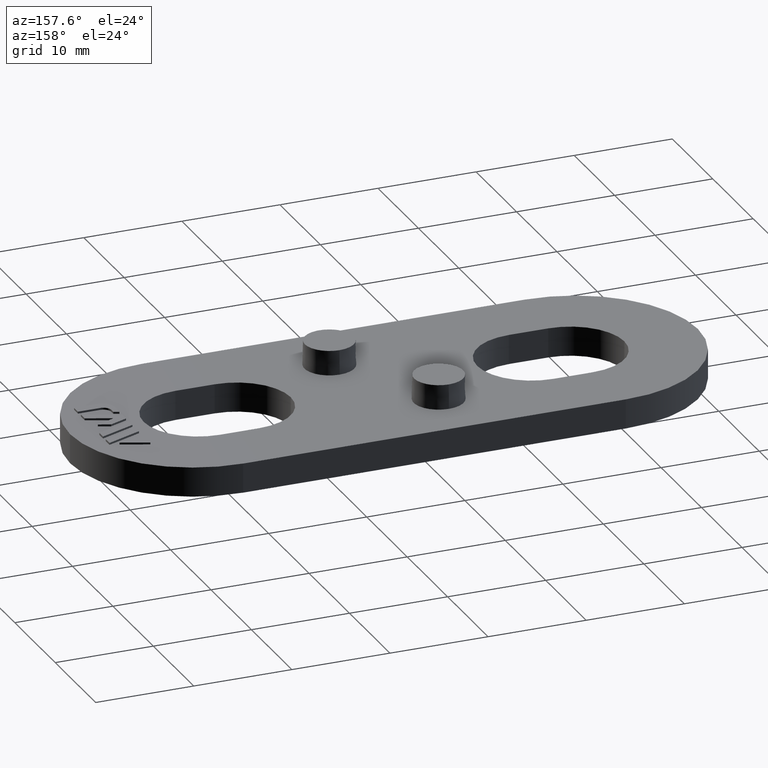
[diagram: clean part render]
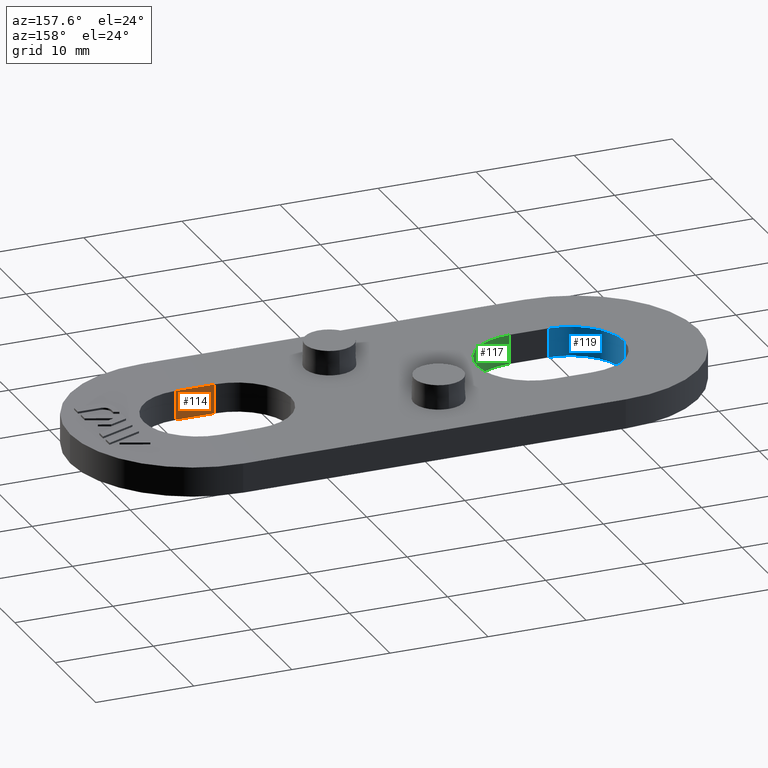
[diagram: same view with three faces highlighted in distinct colors, each labeled with its STEP entity id]
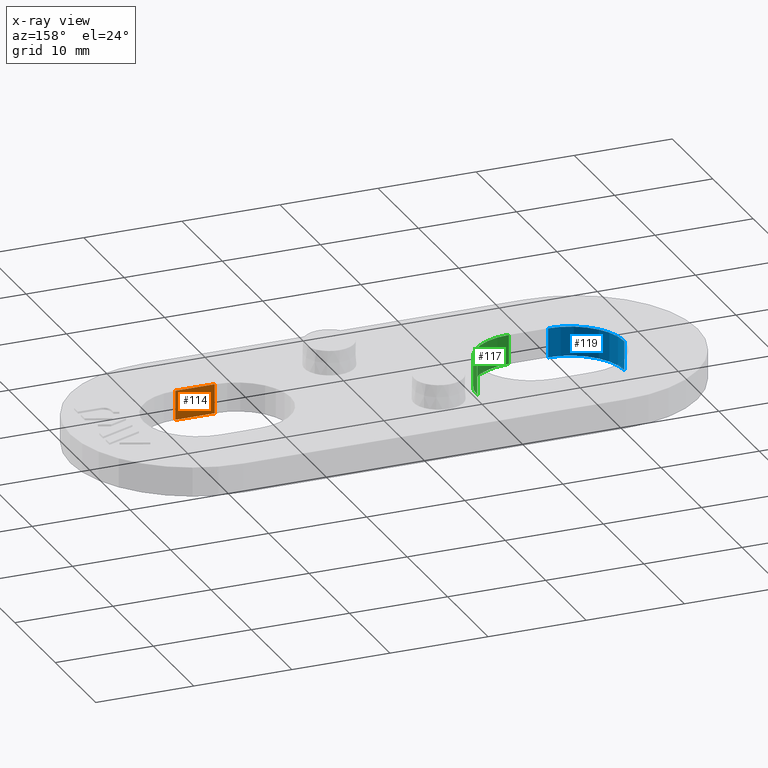
[diagram: x-ray of the same camera — body ghosted, the three highlighted faces saturated]
A machine part, auxiliary view with three faces highlighted in distinct colors.
The next image is the same camera in x-ray (body ghosted, the three faces saturated) — at least one of them is partly hidden behind the body in this view.
Their STEP definitions:

[orange] entity #114 — the highlighted planar face has unit normal (0, -1, 0).
#114 = ADVANCED_FACE( '', ( #240 ), #241, .F. );
#240 = FACE_OUTER_BOUND( '', #397, .T. );
#241 = PLANE( '', #398 );
#397 = EDGE_LOOP( '', ( #802, #803, #804, #805 ) );
#398 = AXIS2_PLACEMENT_3D( '', #806, #807, #808 );
#802 = ORIENTED_EDGE( '', *, *, #1040, .T. );
#803 = ORIENTED_EDGE( '', *, *, #1162, .T. );
#804 = ORIENTED_EDGE( '', *, *, #1111, .T. );
#805 = ORIENTED_EDGE( '', *, *, #1118, .F. );
#806 = CARTESIAN_POINT( '', ( 15.0000000000000, -5.49999999999999, -1.00000000042774E-005 ) );
#807 = DIRECTION( '', ( 5.78241158658936E-017, -1.00000000000000, 6.12303176911189E-017 ) );
#808 = DIRECTION( '', ( -1.00000000000000, -5.78241158658936E-017, 3.54058898467673E-033 ) );
#1040 = EDGE_CURVE( '', #1229, #1227, #1230, .T. );
#1111 = EDGE_CURVE( '', #1367, #1365, #1368, .T. );
#1118 = EDGE_CURVE( '', #1229, #1365, #1377, .T. );
#1162 = EDGE_CURVE( '', #1227, #1367, #1440, .T. );
#1227 = VERTEX_POINT( '', #1532 );
#1229 = VERTEX_POINT( '', #1534 );
#1230 = LINE( '', #1535, #1536 );
#1365 = VERTEX_POINT( '', #1717 );
#1367 = VERTEX_POINT( '', #1719 );
#1368 = LINE( '', #1720, #1721 );
#1377 = LINE( '', #1734, #1735 );
#1440 = LINE( '', #1838, #1839 );
#1532 = CARTESIAN_POINT( '', ( 15.0000000000000, -5.49999999999999, -2.60208521396521E-015 ) );
#1534 = CARTESIAN_POINT( '', ( 19.0000000000000, -5.49999999999999, -2.60208521396521E-015 ) );
#1535 = CARTESIAN_POINT( '', ( 15.0000000000000, -5.49999999999999, -2.60208521396521E-015 ) );
#1536 = VECTOR( '', #1966, 1000.00000000000 );
#1717 = CARTESIAN_POINT( '', ( 19.0000000000000, -5.49999999999999, 3.00000299994030 ) );
#1719 = CARTESIAN_POINT( '', ( 15.0000000000000, -5.49999999999999, 3.00000299994030 ) );
#1720 = CARTESIAN_POINT( '', ( 15.0000000000000, -5.49999999999999, 3.00000299994030 ) );
#1721 = VECTOR( '', #2085, 1000.00000000000 );
#1734 = CARTESIAN_POINT( '', ( 19.0000000000000, -5.49999999999999, -1.00000000042774E-005 ) );
#1735 = VECTOR( '', #2096, 1000.00000000000 );
#1838 = CARTESIAN_POINT( '', ( 15.0000000000000, -5.49999999999999, -1.00000000042774E-005 ) );
#1839 = VECTOR( '', #2146, 1000.00000000000 );
#1966 = DIRECTION( '', ( -1.00000000000000, -5.78241158658936E-017, 3.54058898467673E-033 ) );
#2085 = DIRECTION( '', ( 1.00000000000000, 5.78241158658936E-017, -3.54058898467673E-033 ) );
#2096 = DIRECTION( '', ( 0.000000000000000, 6.12303176911189E-017, 1.00000000000000 ) );
#2146 = DIRECTION( '', ( 0.000000000000000, 6.12303176911189E-017, 1.00000000000000 ) );

[blue] entity #119 — the highlighted cylindrical surface (partial cylindrical patch) has radius 5.5 mm, axis along (0, -0, -1).
#119 = ADVANCED_FACE( '', ( #250 ), #251, .F. );
#250 = FACE_OUTER_BOUND( '', #407, .T. );
#251 = CYLINDRICAL_SURFACE( '', #408, 5.50000000000000 );
#407 = EDGE_LOOP( '', ( #837, #838, #839, #840 ) );
#408 = AXIS2_PLACEMENT_3D( '', #841, #842, #843 );
#837 = ORIENTED_EDGE( '', *, *, #1045, .F. );
#838 = ORIENTED_EDGE( '', *, *, #1166, .T. );
#839 = ORIENTED_EDGE( '', *, *, #1101, .T. );
#840 = ORIENTED_EDGE( '', *, *, #1165, .F. );
#841 = CARTESIAN_POINT( '', ( -19.0000000000000, 0.000000000000000, -1.00000000042774E-005 ) );
#842 = DIRECTION( '', ( 0.000000000000000, -6.12303176911189E-017, -1.00000000000000 ) );
#843 = DIRECTION( '', ( -6.12303176911189E-017, 1.00000000000000, -6.12303176911189E-017 ) );
#1045 = EDGE_CURVE( '', #1237, #1239, #1240, .T. );
#1101 = EDGE_CURVE( '', #1348, #1346, #1349, .T. );
#1165 = EDGE_CURVE( '', #1239, #1346, #1443, .T. );
#1166 = EDGE_CURVE( '', #1237, #1348, #1444, .T. );
#1237 = VERTEX_POINT( '', #1544 );
#1239 = VERTEX_POINT( '', #1546 );
#1240 = CIRCLE( '', #1547, 5.50000000000000 );
#1346 = VERTEX_POINT( '', #1695 );
#1348 = VERTEX_POINT( '', #1698 );
#1349 = CIRCLE( '', #1699, 5.50000000000000 );
#1443 = LINE( '', #1844, #1845 );
#1444 = LINE( '', #1846, #1847 );
#1544 = CARTESIAN_POINT( '', ( -24.5000000000000, 0.000000000000000, -2.60208521396521E-015 ) );
#1546 = CARTESIAN_POINT( '', ( -19.0000000000000, -5.49999999999999, -2.60208521396521E-015 ) );
#1547 = AXIS2_PLACEMENT_3D( '', #1977, #1978, #1979 );
#1695 = CARTESIAN_POINT( '', ( -19.0000000000000, -5.50000000000001, 3.00000299994030 ) );
#1698 = CARTESIAN_POINT( '', ( -24.5000000000000, 0.000000000000000, 3.00000299994030 ) );
#1699 = AXIS2_PLACEMENT_3D( '', #2059, #2060, #2061 );
#1844 = CARTESIAN_POINT( '', ( -19.0000000000000, -5.50000000000001, -1.00000000042774E-005 ) );
#1845 = VECTOR( '', #2149, 1000.00000000000 );
#1846 = CARTESIAN_POINT( '', ( -24.5000000000000, 0.000000000000000, -1.00000000042774E-005 ) );
#1847 = VECTOR( '', #2150, 1000.00000000000 );
#1977 = CARTESIAN_POINT( '', ( -19.0000000000000, 0.000000000000000, -2.60208521396521E-015 ) );
#1978 = DIRECTION( '', ( 0.000000000000000, 6.12303176911189E-017, 1.00000000000000 ) );
#1979 = DIRECTION( '', ( 0.000000000000000, -1.00000000000000, 6.12303176911189E-017 ) );
#2059 = CARTESIAN_POINT( '', ( -19.0000000000000, 0.000000000000000, 3.00000299994030 ) );
#2060 = DIRECTION( '', ( 0.000000000000000, 6.12303176911189E-017, 1.00000000000000 ) );
#2061 = DIRECTION( '', ( 6.12303176911189E-017, -1.00000000000000, 6.12303176911189E-017 ) );
#2149 = DIRECTION( '', ( 0.000000000000000, 6.12303176911189E-017, 1.00000000000000 ) );
#2150 = DIRECTION( '', ( 0.000000000000000, 6.12303176911189E-017, 1.00000000000000 ) );

[green] entity #117 — the highlighted cylindrical surface (partial cylindrical patch) has radius 5.5 mm, axis along (0, -0, -1).
#117 = ADVANCED_FACE( '', ( #246 ), #247, .F. );
#246 = FACE_OUTER_BOUND( '', #403, .T. );
#247 = CYLINDRICAL_SURFACE( '', #404, 5.50000000000000 );
#403 = EDGE_LOOP( '', ( #823, #824, #825, #826 ) );
#404 = AXIS2_PLACEMENT_3D( '', #827, #828, #829 );
#823 = ORIENTED_EDGE( '', *, *, #1047, .F. );
#824 = ORIENTED_EDGE( '', *, *, #1164, .T. );
#825 = ORIENTED_EDGE( '', *, *, #1099, .T. );
#826 = ORIENTED_EDGE( '', *, *, #1131, .F. );
#827 = CARTESIAN_POINT( '', ( -15.0000000000000, 0.000000000000000, -1.00000000042774E-005 ) );
#828 = DIRECTION( '', ( 0.000000000000000, -6.12303176911189E-017, -1.00000000000000 ) );
#829 = DIRECTION( '', ( -6.12303176911189E-017, 1.00000000000000, -6.12303176911189E-017 ) );
#1047 = EDGE_CURVE( '', #1241, #1232, #1243, .T. );
#1099 = EDGE_CURVE( '', #1344, #1341, #1345, .T. );
#1131 = EDGE_CURVE( '', #1232, #1341, #1395, .T. );
#1164 = EDGE_CURVE( '', #1241, #1344, #1442, .T. );
#1232 = VERTEX_POINT( '', #1538 );
#1241 = VERTEX_POINT( '', #1548 );
#1243 = CIRCLE( '', #1551, 5.50000000000000 );
#1341 = VERTEX_POINT( '', #1690 );
#1344 = VERTEX_POINT( '', #1693 );
#1345 = CIRCLE( '', #1694, 5.50000000000000 );
#1395 = LINE( '', #1764, #1765 );
#1442 = LINE( '', #1842, #1843 );
#1538 = CARTESIAN_POINT( '', ( -9.50000000000000, -6.93889390390723E-015, -2.60208521396521E-015 ) );
#1548 = CARTESIAN_POINT( '', ( -15.0000000000000, -5.50000000000001, -2.60208521396521E-015 ) );
#1551 = AXIS2_PLACEMENT_3D( '', #1981, #1982, #1983 );
#1690 = CARTESIAN_POINT( '', ( -9.50000000000000, -6.93889390390723E-015, 3.00000299994030 ) );
#1693 = CARTESIAN_POINT( '', ( -15.0000000000000, -5.50000000000001, 3.00000299994030 ) );
#1694 = AXIS2_PLACEMENT_3D( '', #2055, #2056, #2057 );
#1764 = CARTESIAN_POINT( '', ( -9.50000000000000, -6.93889390390723E-015, -1.00000000042774E-005 ) );
#1765 = VECTOR( '', #2111, 1000.00000000000 );
#1842 = CARTESIAN_POINT( '', ( -15.0000000000000, -5.50000000000001, -1.00000000042774E-005 ) );
#1843 = VECTOR( '', #2148, 1000.00000000000 );
#1981 = CARTESIAN_POINT( '', ( -15.0000000000000, 0.000000000000000, -2.60208521396521E-015 ) );
#1982 = DIRECTION( '', ( 0.000000000000000, 6.12303176911189E-017, 1.00000000000000 ) );
#1983 = DIRECTION( '', ( 0.000000000000000, -1.00000000000000, 6.12303176911189E-017 ) );
#2055 = CARTESIAN_POINT( '', ( -15.0000000000000, 0.000000000000000, 3.00000299994030 ) );
#2056 = DIRECTION( '', ( 0.000000000000000, 6.12303176911189E-017, 1.00000000000000 ) );
#2057 = DIRECTION( '', ( 6.12303176911189E-017, -1.00000000000000, 6.12303176911189E-017 ) );
#2111 = DIRECTION( '', ( 0.000000000000000, 6.12303176911189E-017, 1.00000000000000 ) );
#2148 = DIRECTION( '', ( 0.000000000000000, 6.12303176911189E-017, 1.00000000000000 ) );